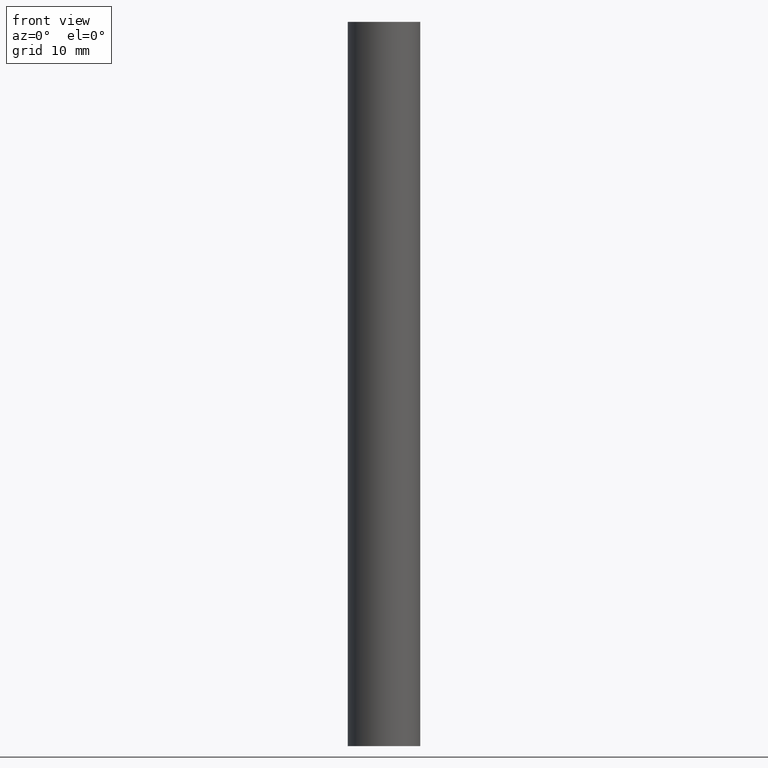
[diagram: clean part render]
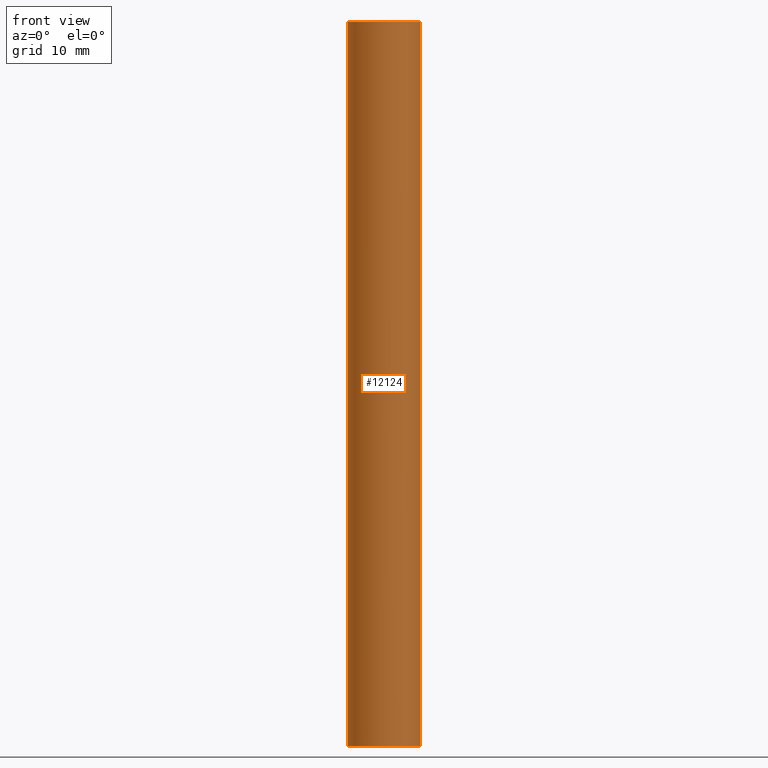
[diagram: same view with one face highlighted and labeled with its STEP entity id]
A machine part, front view. The second image highlights one B-rep face of the part: STEP entity #12124.
In plain terms, the highlighted cylindrical surface (bore or boss wall) has radius 5.5 mm, axis along (-0, -0, -1).
Its self-contained STEP definition (entity closure, byte-faithful):
#493 = CARTESIAN_POINT ( 'NONE',  ( 5.500000000000000000, 0.000000000000000000, -55.00000000000000000 ) ) ;
#1656 = CARTESIAN_POINT ( 'NONE',  ( 5.500000000000000000, 0.000000000000000000, 55.00000000000000000 ) ) ;
#1791 = ORIENTED_EDGE ( 'NONE', *, *, #13656, .F. ) ;
#2303 = AXIS2_PLACEMENT_3D ( 'NONE', #10414, #13750, #5926 ) ;
#3775 = EDGE_CURVE ( 'NONE', #5270, #5270, #6715, .T. ) ;
#4176 = ORIENTED_EDGE ( 'NONE', *, *, #3775, .T. ) ;
#4684 = DIRECTION ( 'NONE',  ( 0.000000000000000000, 0.000000000000000000, 1.000000000000000000 ) ) ;
#5270 = VERTEX_POINT ( 'NONE', #493 ) ;
#5669 = CYLINDRICAL_SURFACE ( 'NONE', #14205, 5.500000000000000000 ) ;
#5926 = DIRECTION ( 'NONE',  ( 1.000000000000000000, 0.000000000000000000, 0.000000000000000000 ) ) ;
#6234 = EDGE_LOOP ( 'NONE', ( #1791 ) ) ;
#6715 = CIRCLE ( 'NONE', #13707, 5.500000000000000000 ) ;
#7461 = FACE_OUTER_BOUND ( 'NONE', #9159, .T. ) ;
#8864 = DIRECTION ( 'NONE',  ( -1.000000000000000000, 0.000000000000000000, 0.000000000000000000 ) ) ;
#8881 = CIRCLE ( 'NONE', #2303, 5.500000000000000000 ) ;
#9159 = EDGE_LOOP ( 'NONE', ( #4176 ) ) ;
#10041 = VERTEX_POINT ( 'NONE', #1656 ) ;
#10083 = CARTESIAN_POINT ( 'NONE',  ( 0.000000000000000000, 0.000000000000000000, 55.00000000000000000 ) ) ;
#10414 = CARTESIAN_POINT ( 'NONE',  ( 0.000000000000000000, 0.000000000000000000, 55.00000000000000000 ) ) ;
#11390 = DIRECTION ( 'NONE',  ( 1.000000000000000000, 0.000000000000000000, 0.000000000000000000 ) ) ;
#12124 = ADVANCED_FACE ( 'NONE', ( #13932, #7461 ), #5669, .T. ) ;
#13316 = DIRECTION ( 'NONE',  ( -0.000000000000000000, -0.000000000000000000, -1.000000000000000000 ) ) ;
#13644 = CARTESIAN_POINT ( 'NONE',  ( 0.000000000000000000, 0.000000000000000000, -55.00000000000000000 ) ) ;
#13656 = EDGE_CURVE ( 'NONE', #10041, #10041, #8881, .T. ) ;
#13707 = AXIS2_PLACEMENT_3D ( 'NONE', #13644, #4684, #11390 ) ;
#13750 = DIRECTION ( 'NONE',  ( 0.000000000000000000, 0.000000000000000000, 1.000000000000000000 ) ) ;
#13932 = FACE_OUTER_BOUND ( 'NONE', #6234, .T. ) ;
#14205 = AXIS2_PLACEMENT_3D ( 'NONE', #10083, #13316, #8864 ) ;